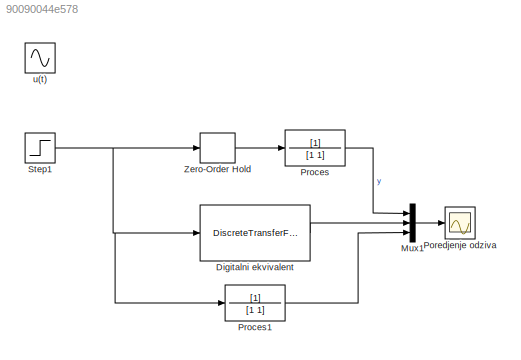
MODEL slx_90090044e578
KIND model
CONFIG AbsTol = auto
CONFIG EnableMultiTasking = on
CONFIG FixedStep = 0.01
CONFIG MaxStep = 0.01
CONFIG MinStep = auto
CONFIG RelTol = 1e-3
CONFIG SampleTimeConstraint = Unconstrained
CONFIG Solver = VariableStepAuto
CONFIG SolverName = VariableStepAuto
CONFIG StartTime = 0.0
CONFIG StopTime = 10.0
BLOCK [DiscreteTransferFcn] Digitalni ekvivalent
  Denominator = [1, -exp(-T)]
  InputPortMap = u0
  Numerator = [1-exp(-T)]
  Ports = [1, 1]
  SampleTime = T
BLOCK [Mux] Mux1
  DisplayOption = bar
  Inputs = 3
  Ports = [3, 1]
BLOCK [Scope] Poredjenje odziva
  NumInputPorts = 1
  Ports = [1]
  ScopeSpecificationString = Simulink.scopes.TimeScopeBlockCfg('CurrentConfiguration', extmgr.ConfigurationSet(extmgr.Configuration('Core','General UI',true),extmgr.Configuration('Core','Source UI',true),extmgr.Configuration('Sources','WiredSimulink',true,'DataLoggingVariableName','ScopeData3'),extmgr.Configuration('Visuals','Time Domain',true,'SerializedDisplays',{struct('MinYLimReal','-0.12499','MaxYLimReal','1.12495','YLab...<+1627ch>
BLOCK [TransferFcn] Proces
  Denominator = [1 1]
BLOCK [TransferFcn] Proces1
  Denominator = [1 1]
BLOCK [Step] Step1
  SampleTime = 0
  Time = 0
BLOCK [ZeroOrderHold] Zero-Order Hold
  SampleTime = T
BLOCK [Sin] u(t)
  Frequency = 0.5
  Ports = [0, 1]
  SampleTime = 0
LINE Digitalni ekvivalent:1 -> Mux1:2
LINE Mux1:1 -> Poredjenje odziva:1
LINE Proces1:1 -> Mux1:3
LINE Proces:1 -> Mux1:1
NET Step1:1 -> Digitalni ekvivalent:1, Proces1:1, Zero-Order Hold:1
LINE Zero-Order Hold:1 -> Proces:1
note: NET lines group one-source signal fan-out (src -> all destinations, sorted); 1:1 wires keep LINE
